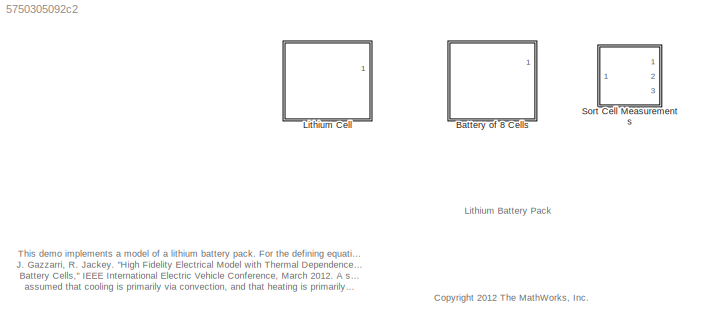
MODEL slx_5750305092c2
KIND library
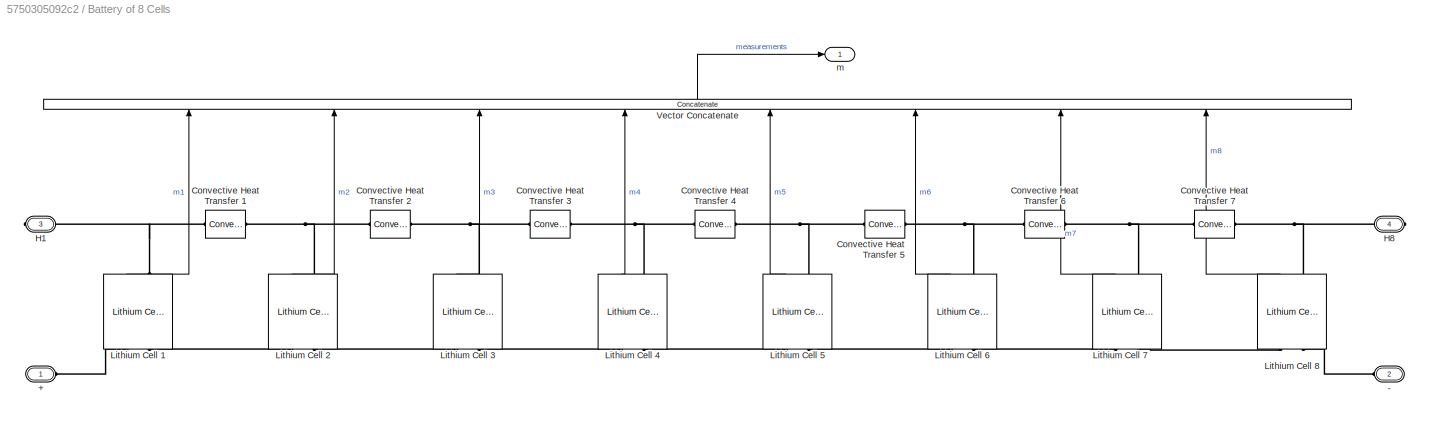
BLOCK [SubSystem] Battery of 8 Cells
  AttributesFormatString = %<ThisStackParams>
  FunctionWithSeparateData = off
  MaskHideContents = off
  MinAlgLoopOccurrences = off
  Opaque = off
  Ports = [0, 1, 0, 0, 0, 2, 2]
  PropExecContextOutsideSubsystem = off
  RTWSystemCode = Auto
  RequestExecContextInheritance = off
BLOCK [PMIOPort] Battery of 8 Cells/+
  Port = 1
  Side = Left
BLOCK [PMIOPort] Battery of 8 Cells/-
  Port = 2
  Side = Left
BLOCK [Reference] Battery of 8 Cells/Convective Heat Transfer 1  REF=fl_lib/Thermal/Thermal Elements/Convective Heat
Transfer
  ClassName = conv_heat_transfer
  ComponentPath = foundation.thermal.elements.convection
  ComponentVariantNames = convection
  ComponentVariants = foundation.thermal.elements.convection
  LocalVarDescs = |Heat flow (J/s)|Temperature difference (K)
  LocalVarLogging = [0 0]
  LocalVarNames = |heat_flow|temperature_diff
  Ports = [0, 0, 0, 0, 0, 1, 1]
  Q_Log = off
  SchemaVersion = 1
  SourceBlock = fl_lib/Thermal/Thermal Elements/Convective Heat\nTransfer
  SourceFile = foundation.thermal.elements.convection
  SourceType = Convective Heat\nTransfer
  T_Log = off
  area = cell_area
  area_unit = m^2
  heat_tr_coeff = h_conv
  heat_tr_coeff_unit = W/(m^2 * K)
BLOCK [Reference] Battery of 8 Cells/Convective Heat Transfer 2  REF=fl_lib/Thermal/Thermal Elements/Convective Heat
Transfer
  ClassName = conv_heat_transfer
  ComponentPath = foundation.thermal.elements.convection
  ComponentVariantNames = convection
  ComponentVariants = foundation.thermal.elements.convection
  LocalVarDescs = |Heat flow (J/s)|Temperature difference (K)
  LocalVarLogging = [0 0]
  LocalVarNames = |heat_flow|temperature_diff
  Ports = [0, 0, 0, 0, 0, 1, 1]
  Q_Log = off
  SchemaVersion = 1
  SourceBlock = fl_lib/Thermal/Thermal Elements/Convective Heat\nTransfer
  SourceFile = foundation.thermal.elements.convection
  SourceType = Convective Heat\nTransfer
  T_Log = off
  area = cell_area
  area_unit = m^2
  heat_tr_coeff = h_conv
  heat_tr_coeff_unit = W/(m^2 * K)
BLOCK [Reference] Battery of 8 Cells/Convective Heat Transfer 3  REF=fl_lib/Thermal/Thermal Elements/Convective Heat
Transfer
  ClassName = conv_heat_transfer
  ComponentPath = foundation.thermal.elements.convection
  ComponentVariantNames = convection
  ComponentVariants = foundation.thermal.elements.convection
  LocalVarDescs = |Heat flow (J/s)|Temperature difference (K)
  LocalVarLogging = [0 0]
  LocalVarNames = |heat_flow|temperature_diff
  Ports = [0, 0, 0, 0, 0, 1, 1]
  Q_Log = off
  SchemaVersion = 1
  SourceBlock = fl_lib/Thermal/Thermal Elements/Convective Heat\nTransfer
  SourceFile = foundation.thermal.elements.convection
  SourceType = Convective Heat\nTransfer
  T_Log = off
  area = cell_area
  area_unit = m^2
  heat_tr_coeff = h_conv
  heat_tr_coeff_unit = W/(m^2 * K)
BLOCK [Reference] Battery of 8 Cells/Convective Heat Transfer 4  REF=fl_lib/Thermal/Thermal Elements/Convective Heat
Transfer
  ClassName = conv_heat_transfer
  ComponentPath = foundation.thermal.elements.convection
  ComponentVariantNames = convection
  ComponentVariants = foundation.thermal.elements.convection
  LocalVarDescs = |Heat flow (J/s)|Temperature difference (K)
  LocalVarLogging = [0 0]
  LocalVarNames = |heat_flow|temperature_diff
  Ports = [0, 0, 0, 0, 0, 1, 1]
  Q_Log = off
  SchemaVersion = 1
  SourceBlock = fl_lib/Thermal/Thermal Elements/Convective Heat\nTransfer
  SourceFile = foundation.thermal.elements.convection
  SourceType = Convective Heat\nTransfer
  T_Log = off
  area = cell_area
  area_unit = m^2
  heat_tr_coeff = h_conv
  heat_tr_coeff_unit = W/(m^2 * K)
BLOCK [Reference] Battery of 8 Cells/Convective Heat Transfer 5  REF=fl_lib/Thermal/Thermal Elements/Convective Heat
Transfer
  ClassName = conv_heat_transfer
  ComponentPath = foundation.thermal.elements.convection
  ComponentVariantNames = convection
  ComponentVariants = foundation.thermal.elements.convection
  LocalVarDescs = |Heat flow (J/s)|Temperature difference (K)
  LocalVarLogging = [0 0]
  LocalVarNames = |heat_flow|temperature_diff
  Ports = [0, 0, 0, 0, 0, 1, 1]
  Q_Log = off
  SchemaVersion = 1
  SourceBlock = fl_lib/Thermal/Thermal Elements/Convective Heat\nTransfer
  SourceFile = foundation.thermal.elements.convection
  SourceType = Convective Heat\nTransfer
  T_Log = off
  area = cell_area
  area_unit = m^2
  heat_tr_coeff = h_conv
  heat_tr_coeff_unit = W/(m^2 * K)
BLOCK [Reference] Battery of 8 Cells/Convective Heat Transfer 6  REF=fl_lib/Thermal/Thermal Elements/Convective Heat
Transfer
  ClassName = conv_heat_transfer
  ComponentPath = foundation.thermal.elements.convection
  ComponentVariantNames = convection
  ComponentVariants = foundation.thermal.elements.convection
  LocalVarDescs = |Heat flow (J/s)|Temperature difference (K)
  LocalVarLogging = [0 0]
  LocalVarNames = |heat_flow|temperature_diff
  Ports = [0, 0, 0, 0, 0, 1, 1]
  Q_Log = off
  SchemaVersion = 1
  SourceBlock = fl_lib/Thermal/Thermal Elements/Convective Heat\nTransfer
  SourceFile = foundation.thermal.elements.convection
  SourceType = Convective Heat\nTransfer
  T_Log = off
  area = cell_area
  area_unit = m^2
  heat_tr_coeff = h_conv
  heat_tr_coeff_unit = W/(m^2 * K)
BLOCK [Reference] Battery of 8 Cells/Convective Heat Transfer 7  REF=fl_lib/Thermal/Thermal Elements/Convective Heat
Transfer
  ClassName = conv_heat_transfer
  ComponentPath = foundation.thermal.elements.convection
  ComponentVariantNames = convection
  ComponentVariants = foundation.thermal.elements.convection
  LocalVarDescs = |Heat flow (J/s)|Temperature difference (K)
  LocalVarLogging = [0 0]
  LocalVarNames = |heat_flow|temperature_diff
  Ports = [0, 0, 0, 0, 0, 1, 1]
  Q_Log = off
  SchemaVersion = 1
  SourceBlock = fl_lib/Thermal/Thermal Elements/Convective Heat\nTransfer
  SourceFile = foundation.thermal.elements.convection
  SourceType = Convective Heat\nTransfer
  T_Log = off
  area = cell_area
  area_unit = m^2
  heat_tr_coeff = h_conv
  heat_tr_coeff_unit = W/(m^2 * K)
BLOCK [PMIOPort] Battery of 8 Cells/H1
  Port = 3
  Side = Right
BLOCK [PMIOPort] Battery of 8 Cells/H8
  Port = 4
  Side = Right
BLOCK [Reference] Battery of 8 Cells/Lithium Cell 1  REF=LiBatteryBlocks/Lithium Cell
  AttributesFormatString = %<Battery>
  Battery = ThisStackParams(1)
  Ports = [0, 1, 0, 0, 0, 2, 1]
  SourceBlock = LiBatteryBlocks/Lithium Cell
  SourceType = Battery Cell
BLOCK [Reference] Battery of 8 Cells/Lithium Cell 2  REF=LiBatteryBlocks/Lithium Cell
  AttributesFormatString = %<Battery>
  Battery = ThisStackParams(2)
  Ports = [0, 1, 0, 0, 0, 2, 1]
  SourceBlock = LiBatteryBlocks/Lithium Cell
  SourceType = Battery Cell
BLOCK [Reference] Battery of 8 Cells/Lithium Cell 3  REF=LiBatteryBlocks/Lithium Cell
  AttributesFormatString = %<Battery>
  Battery = BatteryParams(3)
  Ports = [0, 1, 0, 0, 0, 2, 1]
  SourceBlock = LiBatteryBlocks/Lithium Cell
  SourceType = Battery Cell
BLOCK [Reference] Battery of 8 Cells/Lithium Cell 4  REF=LiBatteryBlocks/Lithium Cell
  AttributesFormatString = %<Battery>
  Battery = ThisStackParams(4)
  Ports = [0, 1, 0, 0, 0, 2, 1]
  SourceBlock = LiBatteryBlocks/Lithium Cell
  SourceType = Battery Cell
BLOCK [Reference] Battery of 8 Cells/Lithium Cell 5  REF=LiBatteryBlocks/Lithium Cell
  AttributesFormatString = %<Battery>
  Battery = ThisStackParams(5)
  Ports = [0, 1, 0, 0, 0, 2, 1]
  SourceBlock = LiBatteryBlocks/Lithium Cell
  SourceType = Battery Cell
BLOCK [Reference] Battery of 8 Cells/Lithium Cell 6  REF=LiBatteryBlocks/Lithium Cell
  AttributesFormatString = %<Battery>
  Battery = ThisStackParams(6)
  Ports = [0, 1, 0, 0, 0, 2, 1]
  SourceBlock = LiBatteryBlocks/Lithium Cell
  SourceType = Battery Cell
BLOCK [Reference] Battery of 8 Cells/Lithium Cell 7  REF=LiBatteryBlocks/Lithium Cell
  AttributesFormatString = %<Battery>
  Battery = ThisStackParams(7)
  Ports = [0, 1, 0, 0, 0, 2, 1]
  SourceBlock = LiBatteryBlocks/Lithium Cell
  SourceType = Battery Cell
BLOCK [Reference] Battery of 8 Cells/Lithium Cell 8  REF=LiBatteryBlocks/Lithium Cell
  AttributesFormatString = %<Battery>
  Battery = ThisStackParams(8)
  Ports = [0, 1, 0, 0, 0, 2, 1]
  SourceBlock = LiBatteryBlocks/Lithium Cell
  SourceType = Battery Cell
BLOCK [Concatenate] Battery of 8 Cells/Vector Concatenate
  NumInputs = 8
  Ports = [8, 1]
BLOCK [Outport] Battery of 8 Cells/m
  IconDisplay = Port number
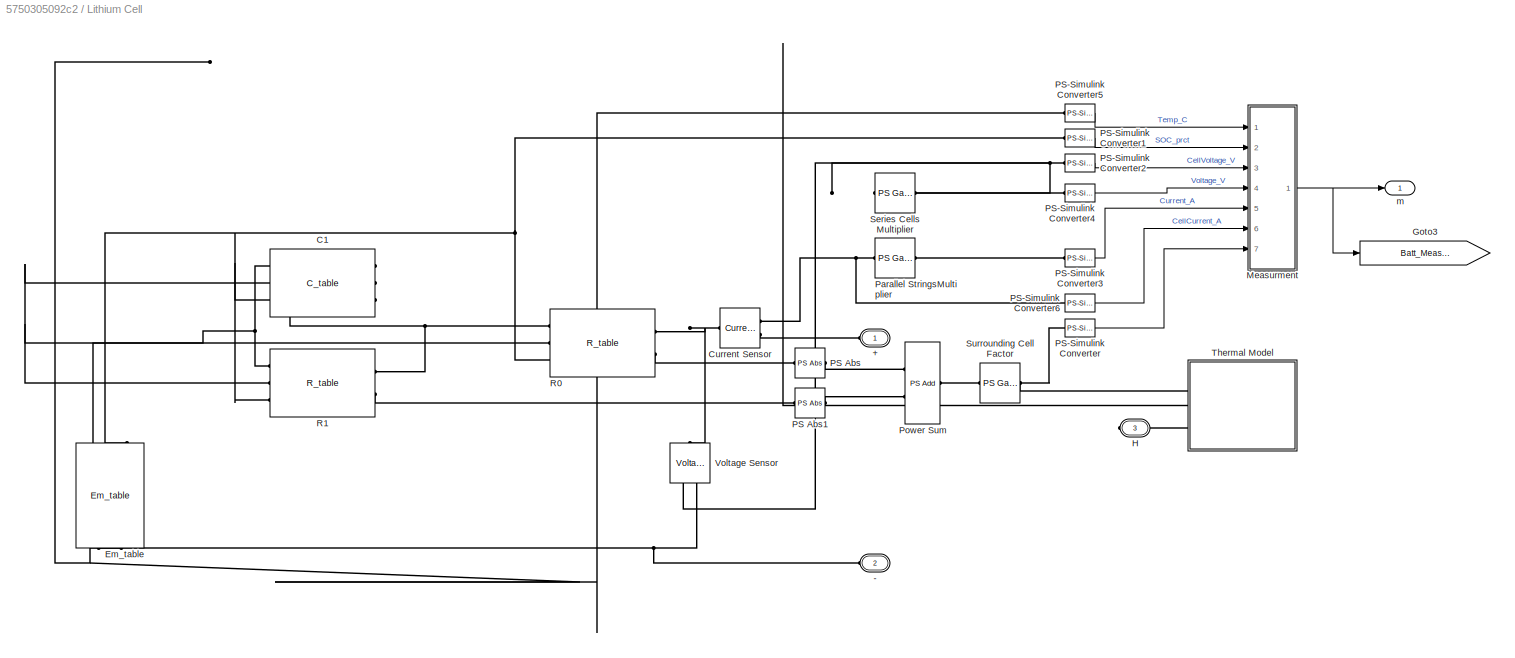
BLOCK [SubSystem] Lithium Cell
  AttributesFormatString = %<Battery>
  FunctionWithSeparateData = off
  MaskHideContents = off
  MinAlgLoopOccurrences = off
  Opaque = off
  Ports = [0, 1, 0, 0, 0, 2, 1]
  PropExecContextOutsideSubsystem = off
  RTWSystemCode = Auto
  RequestExecContextInheritance = off
BLOCK [PMIOPort] Lithium Cell/+
  Port = 1
  Side = Left
  Tag = PMCPort
BLOCK [PMIOPort] Lithium Cell/-
  Port = 2
  Side = Left
  Tag = PMCPort
BLOCK [Reference] Lithium Cell/C1  REF=LiBatteryElements_lib/C_table
  C_Table = Battery.C1_LUT
  C_Table_unit = F
  ClassName = C_table
  ComponentPath = LiBatteryElements.C_table
  ComponentVariantNames = C_table
  ComponentVariants = LiBatteryElements.C_table
  LocalVarDescs = |i|v
  LocalVarLogging = [0 0]
  LocalVarNames = |i|v
  Ports = [0, 0, 0, 0, 0, 3, 1]
  SOC_Table = Battery.SOC_LUT
  SOC_Table_unit = 1
  SchemaVersion = 1
  SourceBlock = LiBatteryElements_lib/C_table
  SourceFile = LiBatteryElements.C_table
  SourceType = C_table
  Temp_Table = Battery.Temperature_LUT
  Temp_Table_unit = K
  i_Log = off
  v0 = 0
  v0_unit = V
  v_Log = off
BLOCK [Reference] Lithium Cell/Current Sensor  REF=fl_lib/Electrical/Electrical Sensors/Current Sensor
  ClassName = current
  ComponentPath = foundation.electrical.sensors.current
  ComponentVariantNames = current
  ComponentVariants = foundation.electrical.sensors.current
  LocalVarDescs = |i1|v1
  LocalVarLogging = [0 0]
  LocalVarNames = |i1|v1
  Ports = [0, 0, 0, 0, 0, 1, 2]
  SchemaVersion = 1
  SourceBlock = fl_lib/Electrical/Electrical Sensors/Current Sensor
  SourceFile = foundation.electrical.sensors.current
  SourceType = Current Sensor
  i1_Log = off
  v1_Log = off
BLOCK [Reference] Lithium Cell/Em_table  REF=LiBatteryElements_lib/Em_table
  C_Table = Battery.Capacity_LUT
  C_Table_unit = hr*A
  ClassName = Em_table
  ComponentPath = LiBatteryElements.Em_table
  ComponentVariantNames = Em_table
  ComponentVariants = LiBatteryElements.Em_table
  Em_Table = Battery.Em_LUT
  Em_Table_unit = V
  LocalVarDescs = |i|v|Charge deficit
  LocalVarLogging = [0 0 0]
  LocalVarNames = |i|v|Qe
  Ports = [0, 0, 0, 0, 0, 3, 2]
  Qe_Log = off
  Qinit = Battery.Qe_init
  Qinit_unit = hr*A
  SOC_Table = Battery.SOC_LUT
  SOC_Table_unit = 1
  SchemaVersion = 1
  SourceBlock = LiBatteryElements_lib/Em_table
  SourceFile = LiBatteryElements.Em_table
  SourceType = Em_table
  Temp_Table = Battery.Temperature_LUT
  Temp_Table_unit = K
  i_Log = off
  v_Log = off
BLOCK [Goto] Lithium Cell/Goto3
  GotoTag = Batt_Measures
  TagVisibility = global
BLOCK [PMIOPort] Lithium Cell/H
  Port = 3
  Side = Right
  Tag = PMCPort
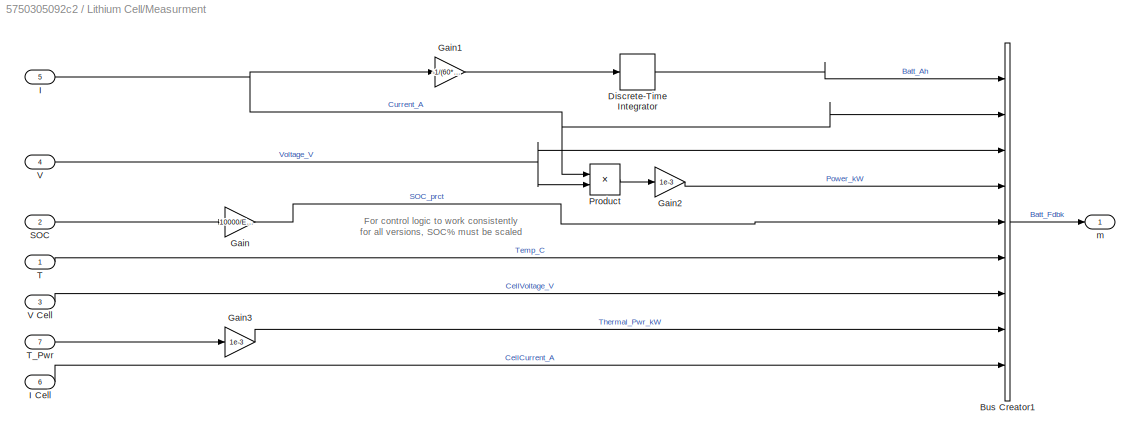
BLOCK [SubSystem] Lithium Cell/Measurment
  FunctionWithSeparateData = off
  MaskHideContents = off
  MinAlgLoopOccurrences = off
  Opaque = off
  Ports = [7, 1]
  PropExecContextOutsideSubsystem = off
  RTWSystemCode = Auto
  RequestExecContextInheritance = off
BLOCK [BusCreator] Lithium Cell/Measurment/Bus Creator1
  DisplayOption = bar
  Inputs = 9
  Ports = [9, 1]
BLOCK [DiscreteIntegrator] Lithium Cell/Measurment/Discrete-Time Integrator
  ICPrevOutput = DiscIntNeverNeededParam
  ICPrevScaledInput = DiscIntNeverNeededParam
  InitialCondition = 28.5* round(Opti_numStrings)*EV_Param.Battery_Det.Initial_SOC/100
  Ports = [1, 1]
  SampleTime = -1
BLOCK [Gain] Lithium Cell/Measurment/Gain
  Gain = 10000/EV_Param.Battery_Det.Initial_SOC*0+100
  OutDataTypeStr = Inherit: Inherit via internal rule
  ParamDataTypeStr = Inherit: Inherit via internal rule
  SaturateOnIntegerOverflow = off
BLOCK [Gain] Lithium Cell/Measurment/Gain1
  Gain = -1/(60*60)
  OutDataTypeStr = Inherit: Inherit via internal rule
  ParamDataTypeStr = Inherit: Inherit via internal rule
  SaturateOnIntegerOverflow = off
BLOCK [Gain] Lithium Cell/Measurment/Gain2
  Gain = 1e-3
  OutDataTypeStr = Inherit: Inherit via internal rule
  ParamDataTypeStr = Inherit: Inherit via internal rule
  SaturateOnIntegerOverflow = off
BLOCK [Gain] Lithium Cell/Measurment/Gain3
  Gain = 1e-3
  OutDataTypeStr = Inherit: Inherit via internal rule
  ParamDataTypeStr = Inherit: Inherit via internal rule
  SaturateOnIntegerOverflow = off
BLOCK [Inport] Lithium Cell/Measurment/I
  IconDisplay = Port number
  Port = 5
BLOCK [Inport] Lithium Cell/Measurment/I Cell
  IconDisplay = Port number
  Port = 6
BLOCK [Product] Lithium Cell/Measurment/Product
  InputSameDT = off
  OutDataTypeStr = Inherit: Inherit via internal rule
  Ports = [2, 1]
  RndMeth = Floor
  SaturateOnIntegerOverflow = off
BLOCK [Inport] Lithium Cell/Measurment/SOC
  IconDisplay = Port number
  Port = 2
BLOCK [Inport] Lithium Cell/Measurment/T
  IconDisplay = Port number
BLOCK [Inport] Lithium Cell/Measurment/T_Pwr
  IconDisplay = Port number
  Port = 7
BLOCK [Inport] Lithium Cell/Measurment/V
  IconDisplay = Port number
  Port = 4
BLOCK [Inport] Lithium Cell/Measurment/V Cell
  IconDisplay = Port number
  Port = 3
BLOCK [Outport] Lithium Cell/Measurment/m
  IconDisplay = Port number
BLOCK [Reference] Lithium Cell/PS Abs  REF=fl_lib/Physical Signals/Nonlinear Operators/PS Abs
  ClassName = abs
  ComponentPath = foundation.physical_signal.nonlinear.abs
  ComponentVariantNames = abs
  ComponentVariants = foundation.physical_signal.nonlinear.abs
  LocalVarLogging = []
  Ports = [0, 0, 0, 0, 0, 1, 1]
  SchemaVersion = 1
  SourceBlock = fl_lib/Physical Signals/Nonlinear Operators/PS Abs
  SourceFile = foundation.physical_signal.nonlinear.abs
  SourceType = PS Abs
BLOCK [Reference] Lithium Cell/PS Abs1  REF=fl_lib/Physical Signals/Nonlinear Operators/PS Abs
  ClassName = abs
  ComponentPath = foundation.physical_signal.nonlinear.abs
  ComponentVariantNames = abs
  ComponentVariants = foundation.physical_signal.nonlinear.abs
  LocalVarLogging = []
  Ports = [0, 0, 0, 0, 0, 1, 1]
  SchemaVersion = 1
  SourceBlock = fl_lib/Physical Signals/Nonlinear Operators/PS Abs
  SourceFile = foundation.physical_signal.nonlinear.abs
  SourceType = PS Abs
BLOCK [Reference] Lithium Cell/PS-Simulink Converter  REF=nesl_utility/PS-Simulink
Converter
  AffineConversion = off
  Frequencies = []
  LeftPortType = input
  PhysicalDomain = network_engine_domain
  Ports = [0, 1, 0, 0, 0, 1]
  PseudoPeriodic = off
  RightPortType = output
  SourceBlock = nesl_utility/PS-Simulink\nConverter
  SourceType = PS-Simulink\nConverter
  SubClassName = ps_output
  Unit = 1
BLOCK [Reference] Lithium Cell/PS-Simulink Converter1  REF=nesl_utility/PS-Simulink
Converter
  AffineConversion = off
  Frequencies = []
  LeftPortType = input
  PhysicalDomain = network_engine_domain
  Ports = [0, 1, 0, 0, 0, 1]
  PseudoPeriodic = off
  RightPortType = output
  SourceBlock = nesl_utility/PS-Simulink\nConverter
  SourceType = PS-Simulink\nConverter
  SubClassName = ps_output
  Unit = 1
BLOCK [Reference] Lithium Cell/PS-Simulink Converter2  REF=nesl_utility/PS-Simulink
Converter
  AffineConversion = off
  Frequencies = []
  LeftPortType = input
  PhysicalDomain = network_engine_domain
  Ports = [0, 1, 0, 0, 0, 1]
  PseudoPeriodic = off
  RightPortType = output
  SourceBlock = nesl_utility/PS-Simulink\nConverter
  SourceType = PS-Simulink\nConverter
  SubClassName = ps_output
  Unit = V
BLOCK [Reference] Lithium Cell/PS-Simulink Converter3  REF=nesl_utility/PS-Simulink
Converter
  AffineConversion = off
  Frequencies = []
  LeftPortType = input
  PhysicalDomain = network_engine_domain
  Ports = [0, 1, 0, 0, 0, 1]
  PseudoPeriodic = off
  RightPortType = output
  SourceBlock = nesl_utility/PS-Simulink\nConverter
  SourceType = PS-Simulink\nConverter
  SubClassName = ps_output
  Unit = A
BLOCK [Reference] Lithium Cell/PS-Simulink Converter4  REF=nesl_utility/PS-Simulink
Converter
  AffineConversion = off
  Frequencies = []
  LeftPortType = input
  PhysicalDomain = network_engine_domain
  Ports = [0, 1, 0, 0, 0, 1]
  PseudoPeriodic = off
  RightPortType = output
  SourceBlock = nesl_utility/PS-Simulink\nConverter
  SourceType = PS-Simulink\nConverter
  SubClassName = ps_output
  Unit = V
BLOCK [Reference] Lithium Cell/PS-Simulink Converter5  REF=nesl_utility/PS-Simulink
Converter
  AffineConversion = on
  Frequencies = []
  LeftPortType = input
  PhysicalDomain = network_engine_domain
  Ports = [0, 1, 0, 0, 0, 1]
  PseudoPeriodic = off
  RightPortType = output
  SourceBlock = nesl_utility/PS-Simulink\nConverter
  SourceType = PS-Simulink\nConverter
  SubClassName = ps_output
  Unit = C
BLOCK [Reference] Lithium Cell/PS-Simulink Converter6  REF=nesl_utility/PS-Simulink
Converter
  AffineConversion = off
  Frequencies = []
  LeftPortType = input
  PhysicalDomain = network_engine_domain
  Ports = [0, 1, 0, 0, 0, 1]
  PseudoPeriodic = off
  RightPortType = output
  SourceBlock = nesl_utility/PS-Simulink\nConverter
  SourceType = PS-Simulink\nConverter
  SubClassName = ps_output
  Unit = A
BLOCK [Reference] Lithium Cell/Parallel StringsMultiplier  REF=fl_lib/Physical Signals/Functions/PS Gain
  ClassName = gain
  ComponentPath = foundation.physical_signal.functions.gain
  ComponentVariantNames = gain
  ComponentVariants = foundation.physical_signal.functions.gain
  LocalVarLogging = []
  Ports = [0, 0, 0, 0, 0, 1, 1]
  SchemaVersion = 1
  SourceBlock = fl_lib/Physical Signals/Functions/PS Gain
  SourceFile = foundation.physical_signal.functions.gain
  SourceType = PS Gain
  gain = round(Opti_numStrings)
  gain_unit = 1
BLOCK [Reference] Lithium Cell/Power Sum  REF=fl_lib/Physical Signals/Functions/PS Add
  ClassName = add
  ComponentPath = foundation.physical_signal.functions.add
  ComponentVariantNames = add
  ComponentVariants = foundation.physical_signal.functions.add
  LocalVarLogging = []
  Ports = [0, 0, 0, 0, 0, 2, 1]
  SchemaVersion = 1
  SourceBlock = fl_lib/Physical Signals/Functions/PS Add
  SourceFile = foundation.physical_signal.functions.add
  SourceType = PS Add
BLOCK [Reference] Lithium Cell/R0  REF=LiBatteryElements_lib/R_table
  ClassName = R_table
  ComponentPath = LiBatteryElements.R_table
  ComponentVariantNames = R_table
  ComponentVariants = LiBatteryElements.R_table
  LocalVarDescs = |i|v
  LocalVarLogging = [0 0]
  LocalVarNames = |i|v
  Ports = [0, 0, 0, 0, 0, 3, 2]
  R_Table = Battery.R0_LUT
  R_Table_unit = Ohm
  SOC_Table = Battery.SOC_LUT
  SOC_Table_unit = 1
  SchemaVersion = 1
  SourceBlock = LiBatteryElements_lib/R_table
  SourceFile = LiBatteryElements.R_table
  SourceType = R_table
  Temp_Table = Battery.Temperature_LUT
  Temp_Table_unit = K
  i_Log = off
  v_Log = off
BLOCK [Reference] Lithium Cell/R1  REF=LiBatteryElements_lib/R_table
  ClassName = R_table
  ComponentPath = LiBatteryElements.R_table
  ComponentVariantNames = R_table
  ComponentVariants = LiBatteryElements.R_table
  LocalVarDescs = |i|v
  LocalVarLogging = [0 0]
  LocalVarNames = |i|v
  Ports = [0, 0, 0, 0, 0, 3, 2]
  R_Table = Battery.R1_LUT
  R_Table_unit = Ohm
  SOC_Table = Battery.SOC_LUT
  SOC_Table_unit = 1
  SchemaVersion = 1
  SourceBlock = LiBatteryElements_lib/R_table
  SourceFile = LiBatteryElements.R_table
  SourceType = R_table
  Temp_Table = Battery.Temperature_LUT
  Temp_Table_unit = K
  i_Log = off
  v_Log = off
BLOCK [Reference] Lithium Cell/Series Cells Multiplier  REF=fl_lib/Physical Signals/Functions/PS Gain
  ClassName = gain
  ComponentPath = foundation.physical_signal.functions.gain
  ComponentVariantNames = gain
  ComponentVariants = foundation.physical_signal.functions.gain
  LocalVarLogging = []
  Ports = [0, 0, 0, 0, 0, 1, 1]
  SchemaVersion = 1
  SourceBlock = fl_lib/Physical Signals/Functions/PS Gain
  SourceFile = foundation.physical_signal.functions.gain
  SourceType = PS Gain
  gain = round(Opti_numSeriesCells)
  gain_unit = 1
BLOCK [Reference] Lithium Cell/Surrounding Cell Factor  REF=fl_lib/Physical Signals/Functions/PS Gain
  ClassName = gain
  ComponentPath = foundation.physical_signal.functions.gain
  ComponentVariantNames = gain
  ComponentVariants = foundation.physical_signal.functions.gain
  LocalVarLogging = []
  Ports = [0, 0, 0, 0, 0, 1, 1]
  SchemaVersion = 1
  SourceBlock = fl_lib/Physical Signals/Functions/PS Gain
  SourceFile = foundation.physical_signal.functions.gain
  SourceType = PS Gain
  gain = 1.2
  gain_unit = 1
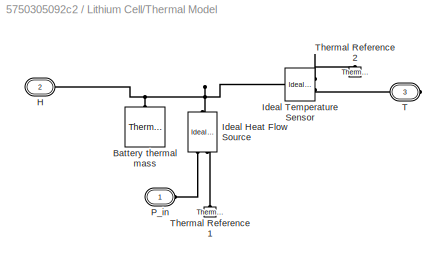
BLOCK [SubSystem] Lithium Cell/Thermal Model
  FunctionWithSeparateData = off
  MaskHideContents = off
  MinAlgLoopOccurrences = off
  Opaque = off
  Ports = [0, 0, 0, 0, 0, 2, 1]
  PropExecContextOutsideSubsystem = off
  RTWSystemCode = Auto
  RequestExecContextInheritance = off
BLOCK [Reference] Lithium Cell/Thermal Model/Battery thermal mass  REF=fl_lib/Thermal/Thermal Elements/Thermal Mass
  ClassName = thermal_mass
  ComponentPath = foundation.thermal.elements.mass
  ComponentVariantNames = mass
  ComponentVariants = foundation.thermal.elements.mass
  LocalVarDescs = |Heat flow (J/s)|Mass temperature (K)
  LocalVarLogging = [0 0]
  LocalVarNames = |heat_flow|temperature
  Ports = [0, 0, 0, 0, 0, 1]
  Q_Log = off
  SchemaVersion = 1
  SourceBlock = fl_lib/Thermal/Thermal Elements/Thermal Mass
  SourceFile = foundation.thermal.elements.mass
  SourceType = Thermal Mass
  init_temp = Battery.T_init
  init_temp_unit = K
  mass = Battery.cell_mass/3
  mass_unit = kg
  sp_heat = Battery.cell_Cp_heat
  sp_heat_unit = J/kg/K
BLOCK [PMIOPort] Lithium Cell/Thermal Model/H
  Port = 2
  Side = Left
  Tag = PMCPort
BLOCK [Reference] Lithium Cell/Thermal Model/Ideal Heat Flow Source  REF=fl_lib/Thermal/Thermal Sources/Ideal Heat Flow
Source
  ClassName = heat_flow_src
  ComponentPath = foundation.thermal.sources.heat_flow
  ComponentVariantNames = heat_flow
  ComponentVariants = foundation.thermal.sources.heat_flow
  LocalVarDescs = |Heat flow through the source (J/s)|Temperature differential across the source (K)
  LocalVarLogging = [0 0]
  LocalVarNames = |heat_flow|T_differential
  Ports = [0, 0, 0, 0, 0, 1, 2]
  Q_Log = off
  SchemaVersion = 1
  SourceBlock = fl_lib/Thermal/Thermal Sources/Ideal Heat Flow\nSource
  SourceFile = foundation.thermal.sources.heat_flow
  SourceType = Ideal Heat Flow\nSource
  T_Log = off
BLOCK [Reference] Lithium Cell/Thermal Model/Ideal Temperature Sensor  REF=fl_lib/Thermal/Thermal Sensors/Ideal Temperature
Sensor
  ClassName = sensor_temperature
  ComponentPath = foundation.thermal.sensors.temperature
  ComponentVariantNames = temperature
  ComponentVariants = foundation.thermal.sensors.temperature
  LocalVarDescs = |Qs|Ts
  LocalVarLogging = []
  LocalVarNames = |Qs|Ts
  Ports = [0, 0, 0, 0, 0, 1, 2]
  Qs_Log = off
  SchemaVersion = 1
  SourceBlock = fl_lib/Thermal/Thermal Sensors/Ideal Temperature\nSensor
  SourceFile = foundation.thermal.sensors.temperature
  SourceType = Ideal Temperature\nSensor
  Ts_Log = off
BLOCK [PMIOPort] Lithium Cell/Thermal Model/P_in
  Port = 1
  Side = Left
  Tag = PMCPort
BLOCK [PMIOPort] Lithium Cell/Thermal Model/T
  Port = 3
  Side = Right
  Tag = PMCPort
BLOCK [Reference] Lithium Cell/Thermal Model/Thermal Reference1  REF=fl_lib/Thermal/Thermal Elements/Thermal Reference
  ClassName = reference_thermal
  ComponentPath = foundation.thermal.elements.reference
  ComponentVariantNames = reference
  ComponentVariants = foundation.thermal.elements.reference
  LocalVarDescs = |Q
  LocalVarLogging = []
  LocalVarNames = |Q
  Ports = [0, 0, 0, 0, 0, 1]
  Q_Log = off
  SchemaVersion = 1
  SourceBlock = fl_lib/Thermal/Thermal Elements/Thermal Reference
  SourceFile = foundation.thermal.elements.reference
  SourceType = Thermal Reference
BLOCK [Reference] Lithium Cell/Thermal Model/Thermal Reference2  REF=fl_lib/Thermal/Thermal Elements/Thermal Reference
  ClassName = reference_thermal
  ComponentPath = foundation.thermal.elements.reference
  ComponentVariantNames = reference
  ComponentVariants = foundation.thermal.elements.reference
  LocalVarDescs = |Q
  LocalVarLogging = []
  LocalVarNames = |Q
  Ports = [0, 0, 0, 0, 0, 1]
  Q_Log = off
  SchemaVersion = 1
  SourceBlock = fl_lib/Thermal/Thermal Elements/Thermal Reference
  SourceFile = foundation.thermal.elements.reference
  SourceType = Thermal Reference
BLOCK [Reference] Lithium Cell/Voltage Sensor  REF=fl_lib/Electrical/Electrical Sensors/Voltage Sensor
  ClassName = voltage
  ComponentPath = foundation.electrical.sensors.voltage
  ComponentVariantNames = voltage
  ComponentVariants = foundation.electrical.sensors.voltage
  LocalVarDescs = |i1|v1
  LocalVarLogging = [0 0]
  LocalVarNames = |i1|v1
  Ports = [0, 0, 0, 0, 0, 1, 2]
  SchemaVersion = 1
  SourceBlock = fl_lib/Electrical/Electrical Sensors/Voltage Sensor
  SourceFile = foundation.electrical.sensors.voltage
  SourceType = Voltage Sensor
  i1_Log = off
  v1_Log = off
BLOCK [Outport] Lithium Cell/m
  IconDisplay = Port number
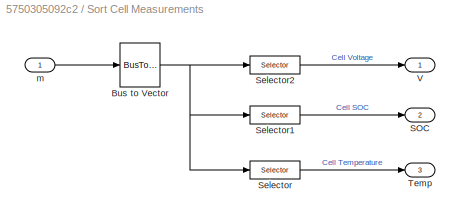
BLOCK [SubSystem] Sort Cell Measurements
  FunctionWithSeparateData = off
  MaskHideContents = off
  MinAlgLoopOccurrences = off
  Opaque = off
  Ports = [1, 3]
  PropExecContextOutsideSubsystem = off
  RTWSystemCode = Auto
  RequestExecContextInheritance = off
BLOCK [BusToVector] Sort Cell Measurements/Bus to Vector
BLOCK [Outport] Sort Cell Measurements/SOC
  IconDisplay = Port number
  Port = 2
BLOCK [Selector] Sort Cell Measurements/Selector
  IndexOptions = Index vector (dialog)
  Indices = 1:3:numCells*3
  InputPortWidth = numCells * 3
  OutputSizes = 1
  Ports = [1, 1]
BLOCK [Selector] Sort Cell Measurements/Selector1
  IndexOptions = Index vector (dialog)
  Indices = 2:3:numCells*3
  InputPortWidth = numCells * 3
  OutputSizes = 1
  Ports = [1, 1]
BLOCK [Selector] Sort Cell Measurements/Selector2
  IndexOptions = Index vector (dialog)
  Indices = 3:3:numCells*3
  InputPortWidth = numCells * 3
  OutputSizes = 1
  Ports = [1, 1]
BLOCK [Outport] Sort Cell Measurements/Temp
  IconDisplay = Port number
  Port = 3
BLOCK [Outport] Sort Cell Measurements/V
  IconDisplay = Port number
BLOCK [Inport] Sort Cell Measurements/m
  IconDisplay = Port number
ANNOTATION (root): <copyright redacted>
ANNOTATION (root): Lithium Battery Pack
ANNOTATION (root): This demo implements a model of a lithium battery pack. For the defining equations of each cell and their validation, see T. Huria, M. Ceraolo, J. Gazzarri, R. Jackey. "High Fidelity Electrical Model with Thermal Dependence for Characterization and Simulation of High Power Lithium Battery Cells," IEEE International Electric Vehicle Conference, March 2012. A simple thermal model is used to model ba...<+130ch>
ANNOTATION Lithium Cell/Measurment: For control logic to work consistently for all versions, SOC% must be scaled
LINE Battery of 8 Cells/Lithium Cell 1:1 -> Battery of 8 Cells/Vector Concatenate:1
LINE Battery of 8 Cells/Lithium Cell 2:1 -> Battery of 8 Cells/Vector Concatenate:2
LINE Battery of 8 Cells/Lithium Cell 3:1 -> Battery of 8 Cells/Vector Concatenate:3
LINE Battery of 8 Cells/Lithium Cell 4:1 -> Battery of 8 Cells/Vector Concatenate:4
LINE Battery of 8 Cells/Lithium Cell 5:1 -> Battery of 8 Cells/Vector Concatenate:5
LINE Battery of 8 Cells/Lithium Cell 6:1 -> Battery of 8 Cells/Vector Concatenate:6
LINE Battery of 8 Cells/Lithium Cell 7:1 -> Battery of 8 Cells/Vector Concatenate:7
LINE Battery of 8 Cells/Lithium Cell 8:1 -> Battery of 8 Cells/Vector Concatenate:8
LINE Battery of 8 Cells/Vector Concatenate:1 -> Battery of 8 Cells/m:1
LINE Lithium Cell/Measurment/Bus Creator1:1 -> Lithium Cell/Measurment/m:1
LINE Lithium Cell/Measurment/Discrete-Time Integrator:1 -> Lithium Cell/Measurment/Bus Creator1:1
LINE Lithium Cell/Measurment/Gain1:1 -> Lithium Cell/Measurment/Discrete-Time Integrator:1
LINE Lithium Cell/Measurment/Gain2:1 -> Lithium Cell/Measurment/Bus Creator1:4
LINE Lithium Cell/Measurment/Gain3:1 -> Lithium Cell/Measurment/Bus Creator1:8
LINE Lithium Cell/Measurment/Gain:1 -> Lithium Cell/Measurment/Bus Creator1:5
LINE Lithium Cell/Measurment/I Cell:1 -> Lithium Cell/Measurment/Bus Creator1:9
NET Lithium Cell/Measurment/I:1 -> Lithium Cell/Measurment/Bus Creator1:2, Lithium Cell/Measurment/Gain1:1, Lithium Cell/Measurment/Product:1
LINE Lithium Cell/Measurment/Product:1 -> Lithium Cell/Measurment/Gain2:1
LINE Lithium Cell/Measurment/SOC:1 -> Lithium Cell/Measurment/Gain:1
LINE Lithium Cell/Measurment/T:1 -> Lithium Cell/Measurment/Bus Creator1:6
LINE Lithium Cell/Measurment/T_Pwr:1 -> Lithium Cell/Measurment/Gain3:1
LINE Lithium Cell/Measurment/V Cell:1 -> Lithium Cell/Measurment/Bus Creator1:7
NET Lithium Cell/Measurment/V:1 -> Lithium Cell/Measurment/Bus Creator1:3, Lithium Cell/Measurment/Product:2
NET Lithium Cell/Measurment:1 -> Lithium Cell/Goto3:1, Lithium Cell/m:1
LINE Lithium Cell/PS-Simulink Converter1:1 -> Lithium Cell/Measurment:2
LINE Lithium Cell/PS-Simulink Converter2:1 -> Lithium Cell/Measurment:3
LINE Lithium Cell/PS-Simulink Converter3:1 -> Lithium Cell/Measurment:5
LINE Lithium Cell/PS-Simulink Converter4:1 -> Lithium Cell/Measurment:4
LINE Lithium Cell/PS-Simulink Converter5:1 -> Lithium Cell/Measurment:1
LINE Lithium Cell/PS-Simulink Converter6:1 -> Lithium Cell/Measurment:6
LINE Lithium Cell/PS-Simulink Converter:1 -> Lithium Cell/Measurment:7
NET Sort Cell Measurements/Bus to Vector:1 -> Sort Cell Measurements/Selector1:1, Sort Cell Measurements/Selector2:1, Sort Cell Measurements/Selector:1
LINE Sort Cell Measurements/Selector1:1 -> Sort Cell Measurements/SOC:1
LINE Sort Cell Measurements/Selector2:1 -> Sort Cell Measurements/V:1
LINE Sort Cell Measurements/Selector:1 -> Sort Cell Measurements/Temp:1
LINE Sort Cell Measurements/m:1 -> Sort Cell Measurements/Bus to Vector:1
PLINE Battery of 8 Cells/+:RConn1 -- Battery of 8 Cells/Lithium Cell 1:LConn1
PLINE Battery of 8 Cells/-:RConn1 -- Battery of 8 Cells/Lithium Cell 8:LConn2
PNET net1: Battery of 8 Cells/Convective Heat Transfer 1:LConn1 -- Battery of 8 Cells/H1:RConn1 -- Battery of 8 Cells/Lithium Cell 1:RConn1
PNET net2: Battery of 8 Cells/Convective Heat Transfer 1:RConn1 -- Battery of 8 Cells/Convective Heat Transfer 2:LConn1 -- Battery of 8 Cells/Lithium Cell 2:RConn1
PNET net3: Battery of 8 Cells/Convective Heat Transfer 2:RConn1 -- Battery of 8 Cells/Convective Heat Transfer 3:LConn1 -- Battery of 8 Cells/Lithium Cell 3:RConn1
PNET net4: Battery of 8 Cells/Convective Heat Transfer 3:RConn1 -- Battery of 8 Cells/Convective Heat Transfer 4:LConn1 -- Battery of 8 Cells/Lithium Cell 4:RConn1
PNET net5: Battery of 8 Cells/Convective Heat Transfer 4:RConn1 -- Battery of 8 Cells/Convective Heat Transfer 5:LConn1 -- Battery of 8 Cells/Lithium Cell 5:RConn1
PNET net6: Battery of 8 Cells/Convective Heat Transfer 5:RConn1 -- Battery of 8 Cells/Convective Heat Transfer 6:LConn1 -- Battery of 8 Cells/Lithium Cell 6:RConn1
PNET net7: Battery of 8 Cells/Convective Heat Transfer 6:RConn1 -- Battery of 8 Cells/Convective Heat Transfer 7:LConn1 -- Battery of 8 Cells/Lithium Cell 7:RConn1
PNET net8: Battery of 8 Cells/Convective Heat Transfer 7:RConn1 -- Battery of 8 Cells/H8:RConn1 -- Battery of 8 Cells/Lithium Cell 8:RConn1
PLINE Battery of 8 Cells/Lithium Cell 1:LConn2 -- Battery of 8 Cells/Lithium Cell 2:LConn1
PLINE Battery of 8 Cells/Lithium Cell 2:LConn2 -- Battery of 8 Cells/Lithium Cell 3:LConn1
PLINE Battery of 8 Cells/Lithium Cell 3:LConn2 -- Battery of 8 Cells/Lithium Cell 4:LConn1
PLINE Battery of 8 Cells/Lithium Cell 4:LConn2 -- Battery of 8 Cells/Lithium Cell 5:LConn1
PLINE Battery of 8 Cells/Lithium Cell 5:LConn2 -- Battery of 8 Cells/Lithium Cell 6:LConn1
PLINE Battery of 8 Cells/Lithium Cell 6:LConn2 -- Battery of 8 Cells/Lithium Cell 7:LConn1
PLINE Battery of 8 Cells/Lithium Cell 7:LConn2 -- Battery of 8 Cells/Lithium Cell 8:LConn1
PLINE Lithium Cell/+:RConn1 -- Lithium Cell/Current Sensor:RConn2
PNET net9: Lithium Cell/-:RConn1 -- Lithium Cell/Em_table:RConn1 -- Lithium Cell/Voltage Sensor:RConn2
PNET net10: Lithium Cell/C1:LConn1 -- Lithium Cell/Em_table:LConn1 -- Lithium Cell/R1:LConn1
PNET net11: Lithium Cell/C1:LConn2 -- Lithium Cell/Em_table:RConn2 -- Lithium Cell/PS-Simulink Converter5:LConn1 -- Lithium Cell/R0:LConn2 -- Lithium Cell/R1:LConn2 -- Lithium Cell/Thermal Model:RConn1
PNET net12: Lithium Cell/C1:LConn3 -- Lithium Cell/Em_table:LConn3 -- Lithium Cell/PS-Simulink Converter1:LConn1 -- Lithium Cell/R0:LConn3 -- Lithium Cell/R1:LConn3
PNET net13: Lithium Cell/C1:RConn1 -- Lithium Cell/R0:LConn1 -- Lithium Cell/R1:RConn1
PNET net14: Lithium Cell/Current Sensor:LConn1 -- Lithium Cell/R0:RConn1 -- Lithium Cell/Voltage Sensor:LConn1
PNET net15: Lithium Cell/Current Sensor:RConn1 -- Lithium Cell/PS-Simulink Converter6:LConn1 -- Lithium Cell/Parallel StringsMultiplier:LConn1
PLINE Lithium Cell/H:RConn1 -- Lithium Cell/Thermal Model:LConn2
PLINE Lithium Cell/PS Abs1:LConn1 -- Lithium Cell/R1:RConn2
PLINE Lithium Cell/PS Abs1:RConn1 -- Lithium Cell/Power Sum:LConn2
PLINE Lithium Cell/PS Abs:LConn1 -- Lithium Cell/R0:RConn2
PLINE Lithium Cell/PS Abs:RConn1 -- Lithium Cell/Power Sum:LConn1
PNET net16: Lithium Cell/PS-Simulink Converter2:LConn1 -- Lithium Cell/Series Cells Multiplier:LConn1 -- Lithium Cell/Voltage Sensor:RConn1
PLINE Lithium Cell/PS-Simulink Converter3:LConn1 -- Lithium Cell/Parallel StringsMultiplier:RConn1
PLINE Lithium Cell/PS-Simulink Converter4:LConn1 -- Lithium Cell/Series Cells Multiplier:RConn1
PNET net17: Lithium Cell/PS-Simulink Converter:LConn1 -- Lithium Cell/Surrounding Cell Factor:RConn1 -- Lithium Cell/Thermal Model:LConn1
PLINE Lithium Cell/Power Sum:RConn1 -- Lithium Cell/Surrounding Cell Factor:LConn1
PNET net18: Lithium Cell/Thermal Model/Battery thermal mass:LConn1 -- Lithium Cell/Thermal Model/H:RConn1 -- Lithium Cell/Thermal Model/Ideal Heat Flow Source:LConn1 -- Lithium Cell/Thermal Model/Ideal Temperature Sensor:LConn1
PLINE Lithium Cell/Thermal Model/Ideal Heat Flow Source:RConn1 -- Lithium Cell/Thermal Model/P_in:RConn1
PLINE Lithium Cell/Thermal Model/Ideal Heat Flow Source:RConn2 -- Lithium Cell/Thermal Model/Thermal Reference1:LConn1
PLINE Lithium Cell/Thermal Model/Ideal Temperature Sensor:RConn1 -- Lithium Cell/Thermal Model/Thermal Reference2:LConn1
PLINE Lithium Cell/Thermal Model/Ideal Temperature Sensor:RConn2 -- Lithium Cell/Thermal Model/T:RConn1
note: NET lines group one-source signal fan-out (src -> all destinations, sorted); 1:1 wires keep LINE; PNET lines group multi-terminal physical nets as a canonical sorted terminal list (undirected conserving connections); 2-terminal nets keep the pairwise PLINE form
